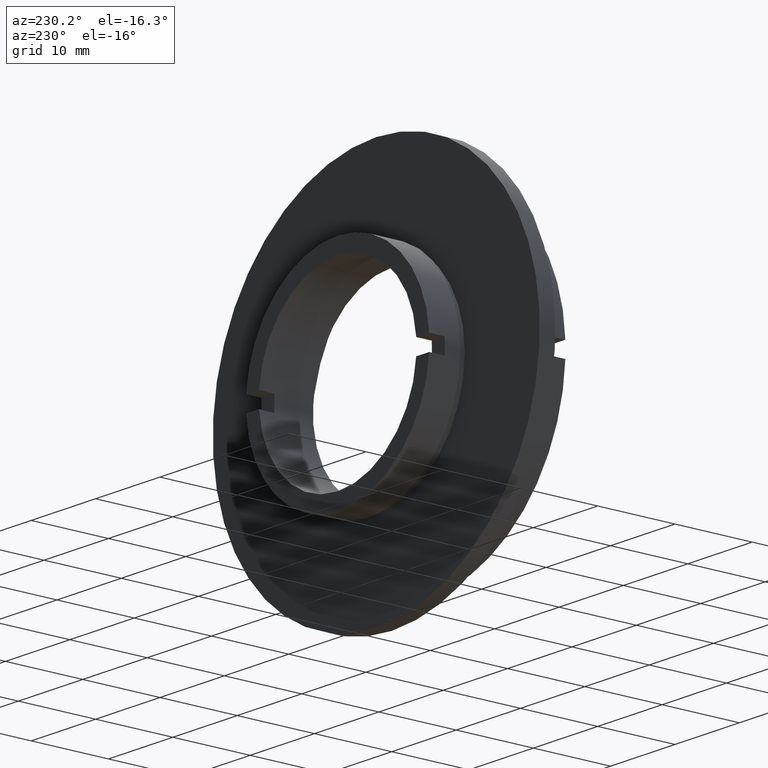
[diagram: clean part render]
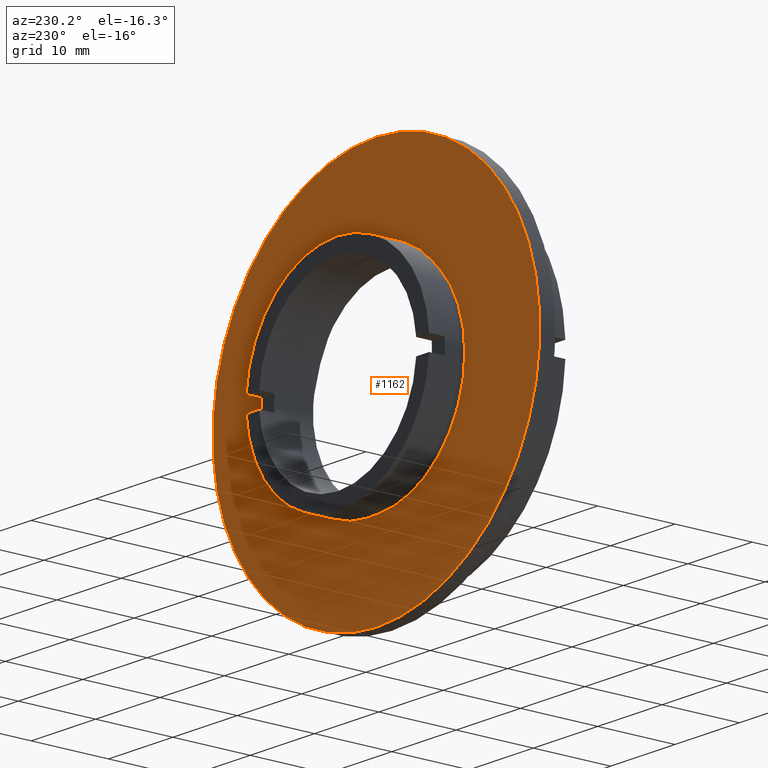
[diagram: same view with one face highlighted and labeled with its STEP entity id]
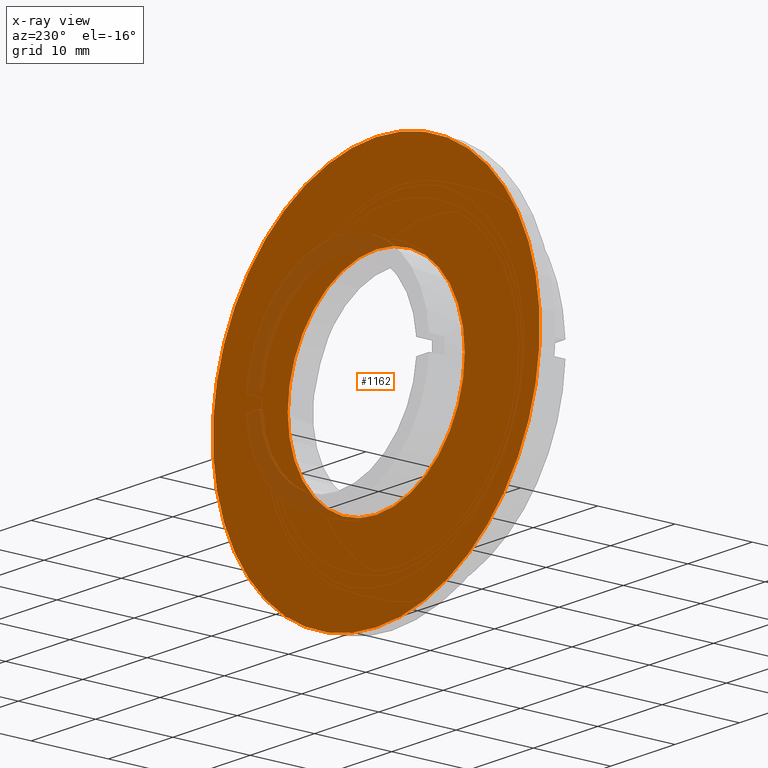
[diagram: x-ray of the same camera — body ghosted, the highlighted face saturated]
A machine part, auxiliary view. The second image highlights one B-rep face of the part: STEP entity #1162.
The next image is the same camera in x-ray: the body ghosted, the highlighted face saturated — about 7% of this face is hidden behind the body in this view.
In plain terms, the highlighted planar face has unit normal (-0, 1, 0).
Its self-contained STEP definition (entity closure, byte-faithful):
#33 = CARTESIAN_POINT ( 'NONE',  ( 3.110602869834276500E-015, 6.999999999999999100, -25.39999999999999500 ) ) ;
#37 = DIRECTION ( 'NONE',  ( -0.0000000000000000000, 1.000000000000000000, -0.0000000000000000000 ) ) ;
#42 = CIRCLE ( 'NONE', #1004, 13.74999999999999800 ) ;
#93 = FACE_OUTER_BOUND ( 'NONE', #212, .T. ) ;
#122 = PLANE ( 'NONE',  #1229 ) ;
#123 = CARTESIAN_POINT ( 'NONE',  ( 0.0000000000000000000, 6.999999999999999100, 13.74999999999999800 ) ) ;
#150 = CARTESIAN_POINT ( 'NONE',  ( 1.683889348827610500E-015, 6.999999999999999100, -13.74999999999999800 ) ) ;
#157 = EDGE_CURVE ( 'NONE', #221, #707, #534, .T. ) ;
#182 = DIRECTION ( 'NONE',  ( -0.0000000000000000000, 1.000000000000000000, -0.0000000000000000000 ) ) ;
#196 = ORIENTED_EDGE ( 'NONE', *, *, #1337, .F. ) ;
#212 = EDGE_LOOP ( 'NONE', ( #886, #905 ) ) ;
#221 = VERTEX_POINT ( 'NONE', #150 ) ;
#339 = DIRECTION ( 'NONE',  ( 0.0000000000000000000, 0.0000000000000000000, 1.000000000000000000 ) ) ;
#393 = CARTESIAN_POINT ( 'NONE',  ( 0.0000000000000000000, 6.999999999999999100, 0.0000000000000000000 ) ) ;
#457 = CARTESIAN_POINT ( 'NONE',  ( 0.0000000000000000000, 6.999999999999999100, 0.0000000000000000000 ) ) ;
#508 = FACE_BOUND ( 'NONE', #659, .T. ) ;
#534 = CIRCLE ( 'NONE', #778, 13.74999999999999800 ) ;
#573 = EDGE_CURVE ( 'NONE', #836, #639, #1187, .T. ) ;
#604 = EDGE_CURVE ( 'NONE', #639, #836, #1247, .T. ) ;
#610 = AXIS2_PLACEMENT_3D ( 'NONE', #457, #182, #696 ) ;
#639 = VERTEX_POINT ( 'NONE', #1163 ) ;
#650 = DIRECTION ( 'NONE',  ( 0.0000000000000000000, 0.0000000000000000000, 1.000000000000000000 ) ) ;
#659 = EDGE_LOOP ( 'NONE', ( #196, #972 ) ) ;
#696 = DIRECTION ( 'NONE',  ( 0.0000000000000000000, 0.0000000000000000000, 1.000000000000000000 ) ) ;
#707 = VERTEX_POINT ( 'NONE', #123 ) ;
#709 = DIRECTION ( 'NONE',  ( -0.0000000000000000000, 1.000000000000000000, 0.0000000000000000000 ) ) ;
#768 = CARTESIAN_POINT ( 'NONE',  ( 0.0000000000000000000, 6.999999999999999100, 0.0000000000000000000 ) ) ;
#778 = AXIS2_PLACEMENT_3D ( 'NONE', #1276, #975, #863 ) ;
#836 = VERTEX_POINT ( 'NONE', #33 ) ;
#863 = DIRECTION ( 'NONE',  ( 0.0000000000000000000, 0.0000000000000000000, 1.000000000000000000 ) ) ;
#886 = ORIENTED_EDGE ( 'NONE', *, *, #604, .T. ) ;
#905 = ORIENTED_EDGE ( 'NONE', *, *, #573, .T. ) ;
#947 = AXIS2_PLACEMENT_3D ( 'NONE', #768, #1179, #1036 ) ;
#972 = ORIENTED_EDGE ( 'NONE', *, *, #157, .F. ) ;
#975 = DIRECTION ( 'NONE',  ( -0.0000000000000000000, 1.000000000000000000, -0.0000000000000000000 ) ) ;
#1004 = AXIS2_PLACEMENT_3D ( 'NONE', #393, #37, #650 ) ;
#1036 = DIRECTION ( 'NONE',  ( 0.0000000000000000000, 0.0000000000000000000, 1.000000000000000000 ) ) ;
#1162 = ADVANCED_FACE ( 'NONE', ( #93, #508 ), #122, .T. ) ;
#1163 = CARTESIAN_POINT ( 'NONE',  ( 0.0000000000000000000, 6.999999999999999100, 25.39999999999999500 ) ) ;
#1179 = DIRECTION ( 'NONE',  ( -0.0000000000000000000, 1.000000000000000000, -0.0000000000000000000 ) ) ;
#1187 = CIRCLE ( 'NONE', #610, 25.39999999999999500 ) ;
#1211 = CARTESIAN_POINT ( 'NONE',  ( -13.74999999999999800, 6.999999999999999100, 0.0000000000000000000 ) ) ;
#1229 = AXIS2_PLACEMENT_3D ( 'NONE', #1211, #709, #339 ) ;
#1247 = CIRCLE ( 'NONE', #947, 25.39999999999999500 ) ;
#1276 = CARTESIAN_POINT ( 'NONE',  ( 0.0000000000000000000, 6.999999999999999100, 0.0000000000000000000 ) ) ;
#1337 = EDGE_CURVE ( 'NONE', #707, #221, #42, .T. ) ;